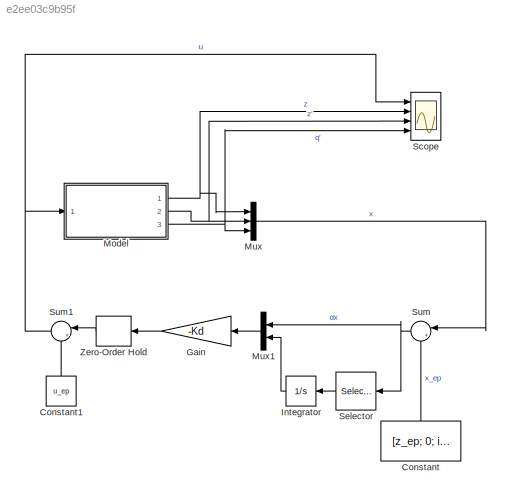
MODEL slx_e2ee03c9b95f
KIND model
CONFIG AbsTol = auto
CONFIG FixedStep = auto
CONFIG MaxStep = auto
CONFIG MinStep = auto
CONFIG RelTol = 1e-3
CONFIG SampleTimeConstraint = Unconstrained
CONFIG Solver = ode45
CONFIG SolverMode = Auto
CONFIG SolverName = ode45
CONFIG StartTime = 0.0
CONFIG StopTime = 1
BLOCK [Constant] Constant
  Value = [z_ep; 0; i_ep]
BLOCK [Constant] Constant1
  Value = u_ep
BLOCK [Gain] Gain
  Gain = -Kd
  Multiplication = Matrix(K*u) (u vector)
  OutDataTypeStr = Inherit: Inherit via internal rule
  ParamDataTypeStr = Inherit: Inherit via internal rule
  SaturateOnIntegerOverflow = off
BLOCK [Integrator] Integrator
  Ports = [1, 1]
BLOCK [ModelReference] Model
  CopyOfModelName = plant_model_for_linearization
  DefaultDataLogging = on
  ModelNameDialog = plant_model_for_linearization
  ModelReferenceVersion = 1.15
  Ports = [1, 3]
BLOCK [Mux] Mux
  DisplayOption = bar
  Inputs = 3
  Ports = [3, 1]
BLOCK [Mux] Mux1
  DisplayOption = bar
  Inputs = 2
  Ports = [2, 1]
BLOCK [Scope] Scope
  DataFormat = StructureWithTime
  Floating = off
  LimitDataPoints = off
  NumInputPorts = 4
  Ports = [4]
  SaveName = ModelData
  SaveToWorkspace = on
  ShowLegends = on
  TimeRange = 1
  YMax = 5~5~5~5
  YMin = -5~-5~-5~-5
  ZoomMode = yonly
BLOCK [Selector] Selector
  Indices = [1]
  InputPortWidth = 3
  Ports = [1, 1]
BLOCK [Sum] Sum
  IconShape = round
  InputSameDT = off
  Inputs = |+-
  OutDataTypeStr = Inherit: Inherit via internal rule
  Ports = [2, 1]
  SaturateOnIntegerOverflow = off
BLOCK [Sum] Sum1
  IconShape = round
  InputSameDT = off
  Inputs = |++
  OutDataTypeStr = Inherit: Inherit via internal rule
  Ports = [2, 1]
  SaturateOnIntegerOverflow = off
BLOCK [ZeroOrderHold] Zero-Order Hold
  SampleTime = 0.001
LINE Constant1:1 -> Sum1:2
LINE Constant:1 -> Sum:2
LINE Gain:1 -> Zero-Order Hold:1
LINE Integrator:1 -> Mux1:2
NET Model:1 -> Mux:1, Scope:2
NET Model:2 -> Mux:2, Scope:3
NET Model:3 -> Mux:3, Scope:4
LINE Mux1:1 -> Gain:1
LINE Mux:1 -> Sum:1
LINE Selector:1 -> Integrator:1
NET Sum1:1 -> Model:1, Scope:1
NET Sum:1 -> Mux1:1, Selector:1
LINE Zero-Order Hold:1 -> Sum1:1
note: NET lines group one-source signal fan-out (src -> all destinations, sorted); 1:1 wires keep LINE
